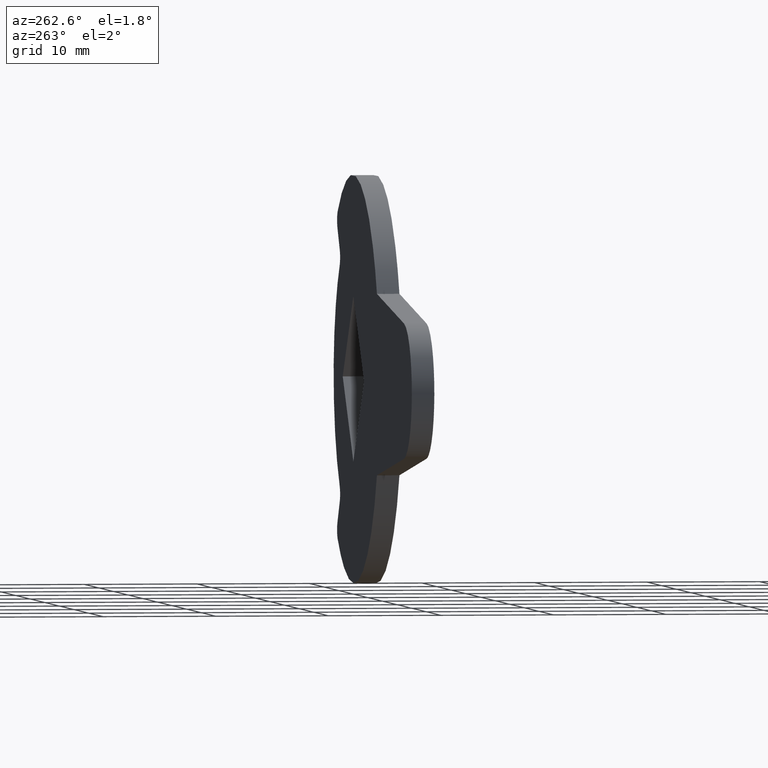
[diagram: clean part render]
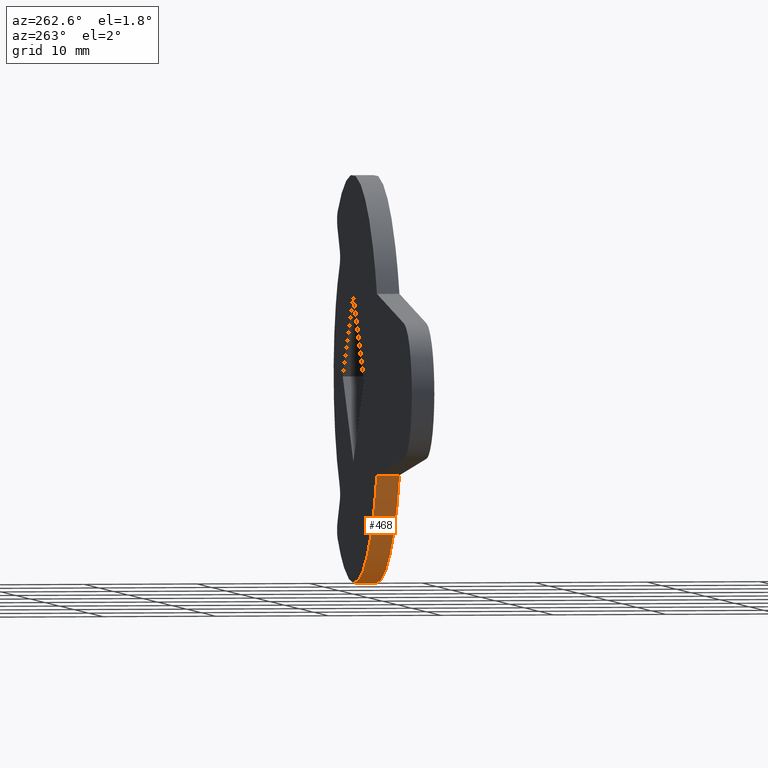
[diagram: same view with one face highlighted and labeled with its STEP entity id]
A machine part, auxiliary view. The second image highlights one B-rep face of the part: STEP entity #468.
In plain terms, the highlighted face is a freeform B-spline surface patch.
Its self-contained STEP definition (entity closure, byte-faithful):
#49=CARTESIAN_POINT('',(-16.124516390019249,0.0,-7.999998199249859));
#50=VERTEX_POINT('',#49);
#177=CARTESIAN_POINT('',(10.739112776660720,0.0,-14.445497084531420));
#178=VERTEX_POINT('',#177);
#194=CARTESIAN_POINT('',(-16.124516390019259,0.0,-7.999998199249873));
#195=CARTESIAN_POINT('',(-12.383854566696820,0.0,-15.539582422374794));
#196=CARTESIAN_POINT('',(-4.199610718877528,0.0,-17.503261055320699));
#197=CARTESIAN_POINT('',(3.984633128941766,0.0,-19.466939688266606));
#198=CARTESIAN_POINT('',(10.739112776660731,0.0,-14.445497084531450));
#206=(BOUNDED_CURVE()B_SPLINE_CURVE(2,(#194,#195,#196,#197,#198),.UNSPECIFIED.,.F.,.U.)B_SPLINE_CURVE_WITH_KNOTS((3,2,3),(0.0,0.500000000000000,1.0),.UNSPECIFIED.)CURVE()GEOMETRIC_REPRESENTATION_ITEM()RATIONAL_B_SPLINE_CURVE((1.0,0.905864136016763,1.0,0.905864136016763,1.0))REPRESENTATION_ITEM(''));
#207=EDGE_CURVE('',#50,#178,#206,.T.);
#247=CARTESIAN_POINT('',(-16.124516390019249,-1.999999999999890,-7.999998199249859));
#248=VERTEX_POINT('',#247);
#256=CARTESIAN_POINT('',(10.739112776660720,-1.999999999999890,-14.445497084531420));
#257=VERTEX_POINT('',#256);
#258=CARTESIAN_POINT('',(-16.124516390019259,-1.999999999999890,-7.999998199249873));
#259=CARTESIAN_POINT('',(-12.383854566696820,-1.999999999999890,-15.539582422374794));
#260=CARTESIAN_POINT('',(-4.199610718877528,-1.999999999999890,-17.503261055320699));
#261=CARTESIAN_POINT('',(3.984633128941766,-1.999999999999890,-19.466939688266606));
#262=CARTESIAN_POINT('',(10.739112776660731,-1.999999999999890,-14.445497084531450));
#270=(BOUNDED_CURVE()B_SPLINE_CURVE(2,(#258,#259,#260,#261,#262),.UNSPECIFIED.,.F.,.U.)B_SPLINE_CURVE_WITH_KNOTS((3,2,3),(0.0,0.500000000000000,1.0),.UNSPECIFIED.)CURVE()GEOMETRIC_REPRESENTATION_ITEM()RATIONAL_B_SPLINE_CURVE((1.0,0.905864136016763,1.0,0.905864136016763,1.0))REPRESENTATION_ITEM(''));
#271=EDGE_CURVE('',#248,#257,#270,.T.);
#440=CARTESIAN_POINT('',(-16.193714380140339,-2.049999999999888,-7.858982342895257));
#441=CARTESIAN_POINT('',(-16.193714380140339,0.051249999999997,-7.858982342895257));
#442=CARTESIAN_POINT('',(-6.134720521322857,-2.049999999999887,-28.586002939442739));
#443=CARTESIAN_POINT('',(-6.134720521322857,0.051249999999997,-28.586002939442739));
#444=CARTESIAN_POINT('',(11.543128119791181,-2.049999999999888,-13.811484074745520));
#445=CARTESIAN_POINT('',(11.543128119791181,0.051249999999997,-13.811484074745520));
#453=(BOUNDED_SURFACE()B_SPLINE_SURFACE(1,2,((#440,#442,#444),(#441,#443,#445)),.UNSPECIFIED.,.F.,.F.,.U.)B_SPLINE_SURFACE_WITH_KNOTS((2,2),(3,3),(0.0,2.101249999999885),(0.0,35.116731548899430),.UNSPECIFIED.)GEOMETRIC_REPRESENTATION_ITEM()RATIONAL_B_SPLINE_SURFACE(((1.0,0.615661475325658,1.0),(1.0,0.615661475325658,1.0)))REPRESENTATION_ITEM('')SURFACE());
#454=ORIENTED_EDGE('',*,*,#207,.T.);
#455=CARTESIAN_POINT('',(10.739112776660720,-1.999999999999890,-14.445497084531420));
#456=CARTESIAN_POINT('',(10.739112776660720,0.0,-14.445497084531420));
#457=QUASI_UNIFORM_CURVE('',1,(#455,#456),.UNSPECIFIED.,.F.,.U.);
#458=EDGE_CURVE('',#257,#178,#457,.T.);
#459=ORIENTED_EDGE('',*,*,#458,.F.);
#460=ORIENTED_EDGE('',*,*,#271,.F.);
#461=CARTESIAN_POINT('',(-16.124516390019249,-1.999999999999890,-7.999998199249859));
#462=CARTESIAN_POINT('',(-16.124516390019249,0.0,-7.999998199249859));
#463=QUASI_UNIFORM_CURVE('',1,(#461,#462),.UNSPECIFIED.,.F.,.U.);
#464=EDGE_CURVE('',#248,#50,#463,.T.);
#465=ORIENTED_EDGE('',*,*,#464,.T.);
#466=EDGE_LOOP('',(#454,#459,#460,#465));
#467=FACE_OUTER_BOUND('',#466,.T.);
#468=ADVANCED_FACE('',(#467),#453,.T.);